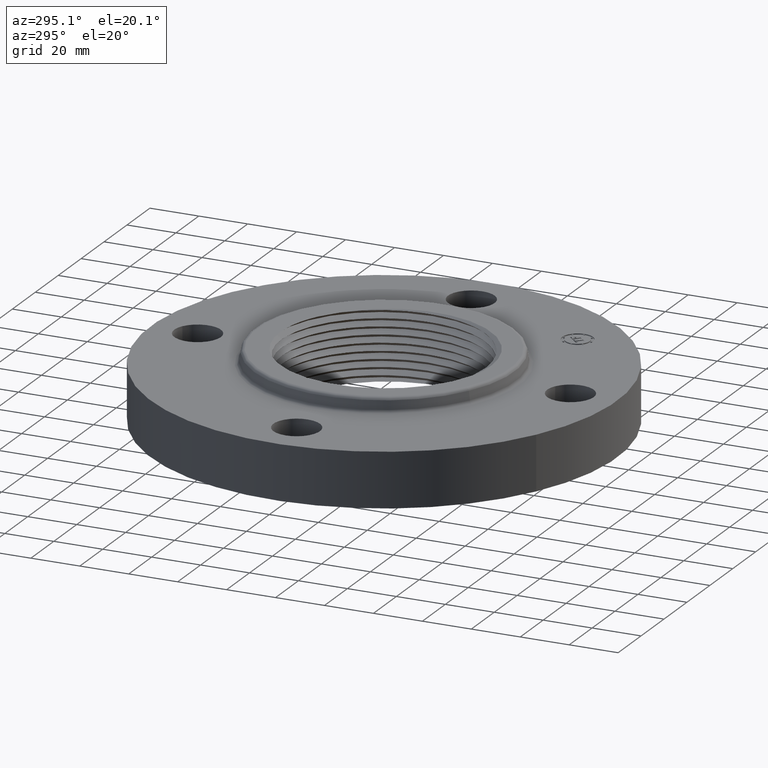
[diagram: clean part render]
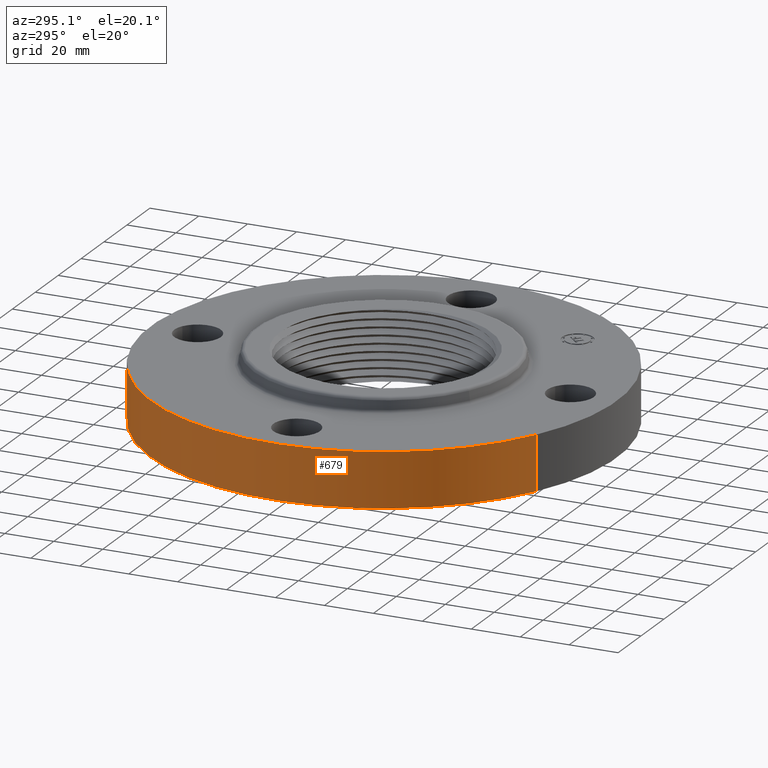
[diagram: same view with one face highlighted and labeled with its STEP entity id]
A machine part, auxiliary view. The second image highlights one B-rep face of the part: STEP entity #679.
In plain terms, the highlighted cylindrical surface (partial cylindrical patch) has radius 95.25 mm, axis along (0, 0, -1).
Its self-contained STEP definition (entity closure, byte-faithful):
#51=AXIS2_PLACEMENT_3D('Circle Axis2P3D',#49,#50,$) ;
#652=AXIS2_PLACEMENT_3D('Cylinder Axis2P3D',#649,#650,#651) ;
#663=AXIS2_PLACEMENT_3D('Circle Axis2P3D',#661,#662,$) ;
#44=CARTESIAN_POINT('Vertex',(1.79784576977,3.2909346071,4.19611851827E-016)) ;
#46=CARTESIAN_POINT('Vertex',(-1.79784576977,-3.2909346071,4.19611851827E-016)) ;
#49=CARTESIAN_POINT('Axis2P3D Location',(0.,0.,0.)) ;
#649=CARTESIAN_POINT('Axis2P3D Location',(0.,0.,0.560000000002)) ;
#654=CARTESIAN_POINT('Line Origine',(-1.79784576977,-3.2909346071,0.440000000002)) ;
#658=CARTESIAN_POINT('Vertex',(-1.79784576977,-3.2909346071,0.880000000004)) ;
#661=CARTESIAN_POINT('Axis2P3D Location',(0.,0.,0.880000000004)) ;
#665=CARTESIAN_POINT('Vertex',(1.79784576977,3.2909346071,0.880000000004)) ;
#668=CARTESIAN_POINT('Line Origine',(1.79784576977,3.2909346071,0.440000000002)) ;
#50=DIRECTION('Axis2P3D Direction',(0.,0.,-0.0393700787402)) ;
#650=DIRECTION('Axis2P3D Direction',(0.,0.,-0.0393700787402)) ;
#651=DIRECTION('Axis2P3D XDirection',(0.0188750212049,0.0345504945626,0.)) ;
#655=DIRECTION('Vector Direction',(0.,0.,-0.0393700787402)) ;
#662=DIRECTION('Axis2P3D Direction',(0.,0.,-0.0393700787402)) ;
#669=DIRECTION('Vector Direction',(0.,0.,-0.0393700787402)) ;
#656=VECTOR('Line Direction',#655,0.0393700787402) ;
#670=VECTOR('Line Direction',#669,0.0393700787402) ;
#674=ORIENTED_EDGE('',*,*,#53,.F.) ;
#675=ORIENTED_EDGE('',*,*,#660,.T.) ;
#676=ORIENTED_EDGE('',*,*,#667,.T.) ;
#677=ORIENTED_EDGE('',*,*,#672,.F.) ;
#679=ADVANCED_FACE('PartBody',(#678),#653,.T.) ;
#52=CIRCLE('generated circle',#51,3.75000000002) ;
#664=CIRCLE('generated circle',#663,3.75000000002) ;
#653=CYLINDRICAL_SURFACE('generated cylinder',#652,3.75000000002) ;
#53=EDGE_CURVE('',#47,#45,#52,.T.) ;
#660=EDGE_CURVE('',#47,#659,#657,.F.) ;
#667=EDGE_CURVE('',#659,#666,#664,.T.) ;
#672=EDGE_CURVE('',#45,#666,#671,.F.) ;
#673=EDGE_LOOP('',(#674,#675,#676,#677)) ;
#678=FACE_OUTER_BOUND('',#673,.T.) ;
#657=LINE('Line',#654,#656) ;
#671=LINE('Line',#668,#670) ;
#45=VERTEX_POINT('',#44) ;
#47=VERTEX_POINT('',#46) ;
#659=VERTEX_POINT('',#658) ;
#666=VERTEX_POINT('',#665) ;